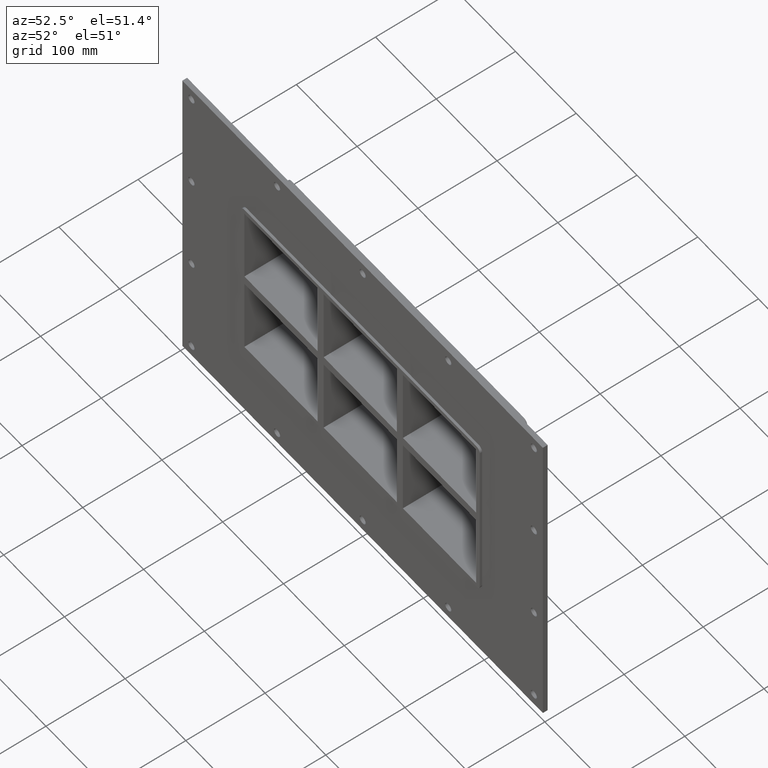
[diagram: clean part render]
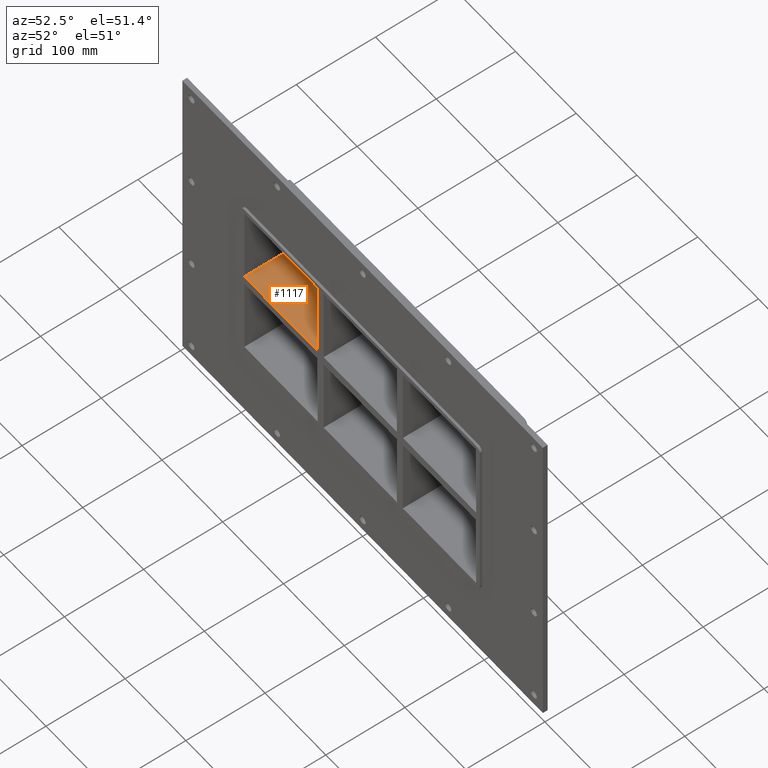
[diagram: same view with one face highlighted and labeled with its STEP entity id]
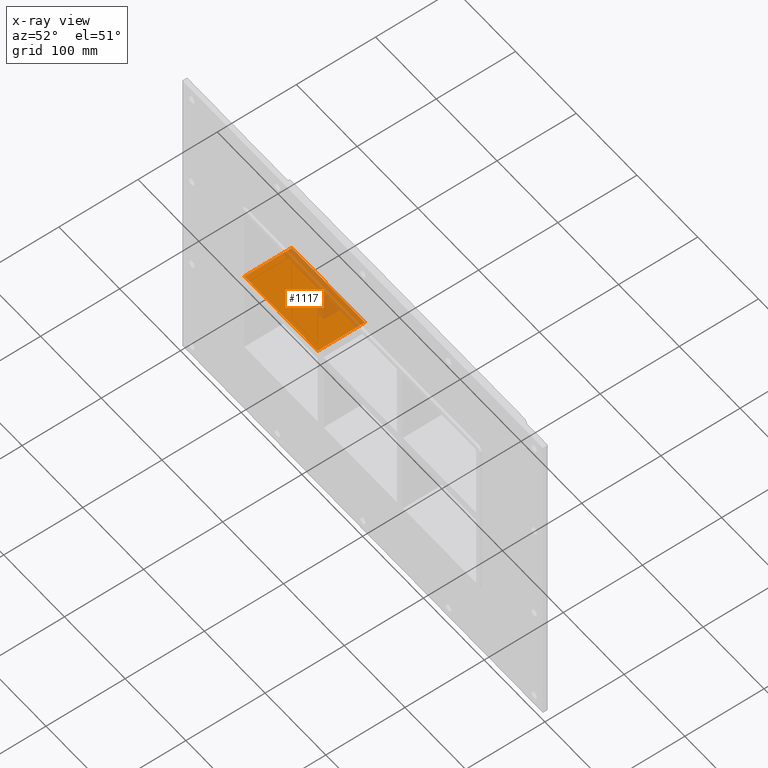
[diagram: x-ray of the same camera — body ghosted, the highlighted face saturated]
A machine part, auxiliary view. The second image highlights one B-rep face of the part: STEP entity #1117.
The next image is the same camera in x-ray: the body ghosted, the highlighted face saturated — about 25% of this face is hidden behind the body in this view.
In plain terms, the highlighted planar face has unit normal (0, 0, 1).
Its self-contained STEP definition (entity closure, byte-faithful):
#877=CARTESIAN_POINT('',(-190.74999999999974,-3.0,5.999999999999943));
#878=VERTEX_POINT('',#877);
#895=CARTESIAN_POINT('',(-70.250000000001364,-3.0,5.999999999999943));
#896=VERTEX_POINT('',#895);
#903=CARTESIAN_POINT('',(-190.74999999999974,-3.0,5.999999999999943));
#904=DIRECTION('',(1.0,0.0,0.0));
#905=VECTOR('',#904,120.49999999999838);
#906=LINE('',#903,#905);
#907=EDGE_CURVE('',#878,#896,#906,.T.);
#1087=CARTESIAN_POINT('',(-190.74999999999974,-3.0,5.999999999999943));
#1088=DIRECTION('',(0.0,0.0,1.0));
#1089=DIRECTION('',(1.0,0.0,0.0));
#1090=AXIS2_PLACEMENT_3D('',#1087,#1088,#1089);
#1091=PLANE('',#1090);
#1092=CARTESIAN_POINT('',(-70.250000000001364,57.0,5.999999999999943));
#1093=VERTEX_POINT('',#1092);
#1094=CARTESIAN_POINT('',(-70.250000000001364,57.0,5.999999999999943));
#1095=DIRECTION('',(0.0,-1.0,0.0));
#1096=VECTOR('',#1095,60.0);
#1097=LINE('',#1094,#1096);
#1098=EDGE_CURVE('',#1093,#896,#1097,.T.);
#1099=ORIENTED_EDGE('',*,*,#1098,.F.);
#1100=CARTESIAN_POINT('',(-190.74999999999974,57.0,5.999999999999943));
#1101=VERTEX_POINT('',#1100);
#1102=CARTESIAN_POINT('',(-190.74999999999974,57.0,5.999999999999943));
#1103=DIRECTION('',(1.0,0.0,0.0));
#1104=VECTOR('',#1103,120.49999999999838);
#1105=LINE('',#1102,#1104);
#1106=EDGE_CURVE('',#1101,#1093,#1105,.T.);
#1107=ORIENTED_EDGE('',*,*,#1106,.F.);
#1108=CARTESIAN_POINT('',(-190.75000000000003,-3.0,5.999999999999943));
#1109=DIRECTION('',(0.0,1.0,0.0));
#1110=VECTOR('',#1109,60.000000000000007);
#1111=LINE('',#1108,#1110);
#1112=EDGE_CURVE('',#878,#1101,#1111,.T.);
#1113=ORIENTED_EDGE('',*,*,#1112,.F.);
#1114=ORIENTED_EDGE('',*,*,#907,.T.);
#1115=EDGE_LOOP('',(#1099,#1107,#1113,#1114));
#1116=FACE_OUTER_BOUND('',#1115,.T.);
#1117=ADVANCED_FACE('',(#1116),#1091,.T.);